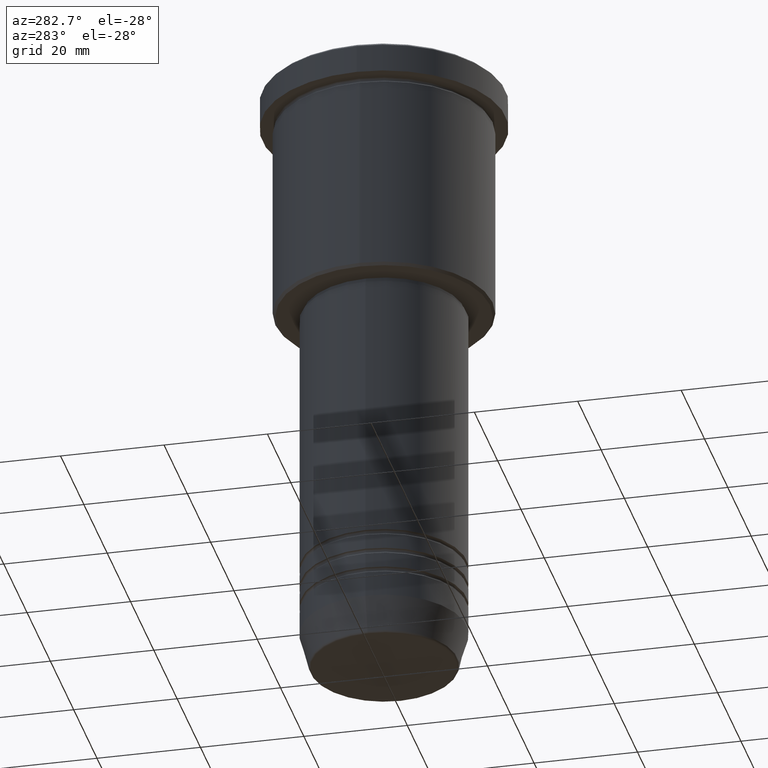
[diagram: clean part render]
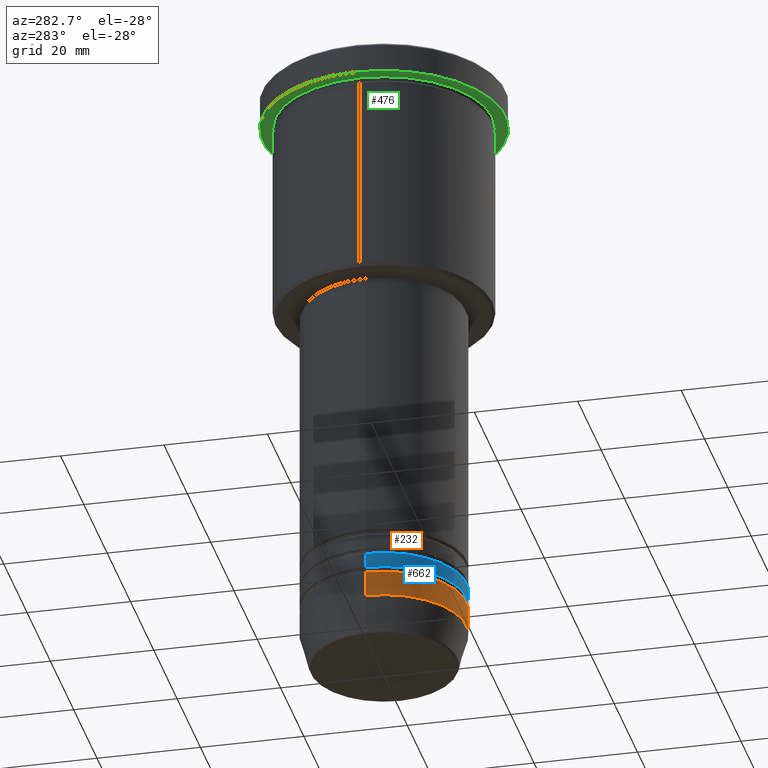
[diagram: same view with three faces highlighted in distinct colors, each labeled with its STEP entity id]
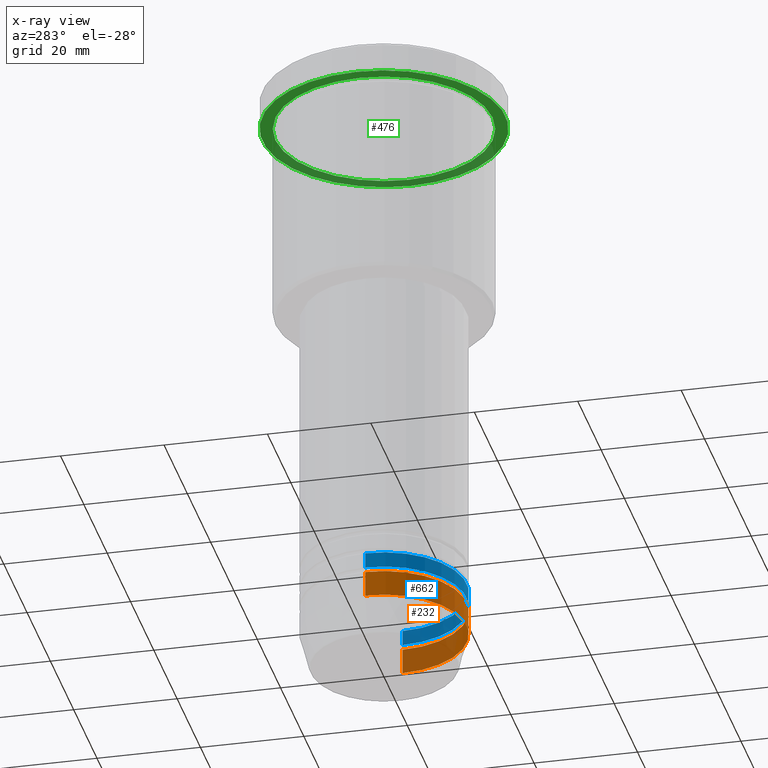
[diagram: x-ray of the same camera — body ghosted, the three highlighted faces saturated]
A machine part, auxiliary view with three faces highlighted in distinct colors.
The next image is the same camera in x-ray (body ghosted, the three faces saturated) — at least one of them is partly hidden behind the body in this view.
Their STEP definitions:

[orange] entity #232 — the highlighted cylindrical surface (partial cylindrical patch) has radius 16 mm, axis along (-0, -0, 1).
#12 = CARTESIAN_POINT ( 'NONE',  ( -16.00000000000000000, 1.959434878635765131E-15, 0.000000000000000000 ) ) ;
#14 = AXIS2_PLACEMENT_3D ( 'NONE', #48, #431, #1140 ) ;
#48 = CARTESIAN_POINT ( 'NONE',  ( 0.000000000000000000, 0.000000000000000000, 0.000000000000000000 ) ) ;
#84 = DIRECTION ( 'NONE',  ( 1.000000000000000000, 0.000000000000000000, 0.000000000000000000 ) ) ;
#114 = EDGE_CURVE ( 'NONE', #150, #1135, #825, .T. ) ;
#131 = AXIS2_PLACEMENT_3D ( 'NONE', #722, #1080, #84 ) ;
#145 = FACE_OUTER_BOUND ( 'NONE', #974, .T. ) ;
#150 = VERTEX_POINT ( 'NONE', #881 ) ;
#232 = ADVANCED_FACE ( 'NONE', ( #145 ), #872, .T. ) ;
#233 = VECTOR ( 'NONE', #411, 1000.000000000000000 ) ;
#329 = DIRECTION ( 'NONE',  ( 1.000000000000000000, 0.000000000000000000, 0.000000000000000000 ) ) ;
#385 = EDGE_CURVE ( 'NONE', #814, #609, #454, .T. ) ;
#395 = EDGE_CURVE ( 'NONE', #814, #150, #833, .T. ) ;
#411 = DIRECTION ( 'NONE',  ( -0.000000000000000000, -0.000000000000000000, 1.000000000000000000 ) ) ;
#413 = VECTOR ( 'NONE', #568, 1000.000000000000000 ) ;
#431 = DIRECTION ( 'NONE',  ( -0.000000000000000000, -0.000000000000000000, 1.000000000000000000 ) ) ;
#446 = CARTESIAN_POINT ( 'NONE',  ( 16.00000000000000000, 0.000000000000000000, -109.0000000000000142 ) ) ;
#454 = CIRCLE ( 'NONE', #131, 16.00000000000000000 ) ;
#568 = DIRECTION ( 'NONE',  ( -0.000000000000000000, -0.000000000000000000, 1.000000000000000000 ) ) ;
#609 = VERTEX_POINT ( 'NONE', #1123 ) ;
#613 = DIRECTION ( 'NONE',  ( -0.000000000000000000, -0.000000000000000000, 1.000000000000000000 ) ) ;
#615 = CARTESIAN_POINT ( 'NONE',  ( 16.00000000000000000, 0.000000000000000000, 0.000000000000000000 ) ) ;
#681 = ORIENTED_EDGE ( 'NONE', *, *, #1049, .T. ) ;
#722 = CARTESIAN_POINT ( 'NONE',  ( 0.000000000000000000, 0.000000000000000000, -114.0000000000000000 ) ) ;
#770 = CARTESIAN_POINT ( 'NONE',  ( 0.000000000000000000, 0.000000000000000000, -109.0000000000000142 ) ) ;
#805 = ORIENTED_EDGE ( 'NONE', *, *, #385, .T. ) ;
#814 = VERTEX_POINT ( 'NONE', #1106 ) ;
#823 = AXIS2_PLACEMENT_3D ( 'NONE', #770, #613, #329 ) ;
#825 = CIRCLE ( 'NONE', #823, 16.00000000000000000 ) ;
#833 = LINE ( 'NONE', #12, #413 ) ;
#872 = CYLINDRICAL_SURFACE ( 'NONE', #14, 16.00000000000000000 ) ;
#881 = CARTESIAN_POINT ( 'NONE',  ( -16.00000000000000000, 1.959434878635765131E-15, -109.0000000000000142 ) ) ;
#927 = ORIENTED_EDGE ( 'NONE', *, *, #395, .F. ) ;
#974 = EDGE_LOOP ( 'NONE', ( #927, #805, #681, #1006 ) ) ;
#1006 = ORIENTED_EDGE ( 'NONE', *, *, #114, .F. ) ;
#1049 = EDGE_CURVE ( 'NONE', #609, #1135, #1059, .T. ) ;
#1059 = LINE ( 'NONE', #615, #233 ) ;
#1080 = DIRECTION ( 'NONE',  ( -0.000000000000000000, -0.000000000000000000, 1.000000000000000000 ) ) ;
#1106 = CARTESIAN_POINT ( 'NONE',  ( -16.00000000000000000, 1.959434878635765131E-15, -114.0000000000000000 ) ) ;
#1123 = CARTESIAN_POINT ( 'NONE',  ( 16.00000000000000000, 0.000000000000000000, -114.0000000000000000 ) ) ;
#1135 = VERTEX_POINT ( 'NONE', #446 ) ;
#1140 = DIRECTION ( 'NONE',  ( 1.000000000000000000, 0.000000000000000000, 0.000000000000000000 ) ) ;

[blue] entity #662 — the highlighted cylindrical surface (partial cylindrical patch) has radius 16 mm, axis along (-0, -0, 1).
#16 = AXIS2_PLACEMENT_3D ( 'NONE', #404, #298, #842 ) ;
#37 = FACE_OUTER_BOUND ( 'NONE', #603, .T. ) ;
#74 = VECTOR ( 'NONE', #533, 1000.000000000000000 ) ;
#75 = CIRCLE ( 'NONE', #451, 16.00000000000000000 ) ;
#135 = LINE ( 'NONE', #616, #74 ) ;
#251 = CARTESIAN_POINT ( 'NONE',  ( -16.00000000000000000, 1.959434878635765131E-15, -107.9999999999998863 ) ) ;
#298 = DIRECTION ( 'NONE',  ( -0.000000000000000000, -0.000000000000000000, 1.000000000000000000 ) ) ;
#322 = VERTEX_POINT ( 'NONE', #818 ) ;
#331 = DIRECTION ( 'NONE',  ( 1.000000000000000000, 0.000000000000000000, 0.000000000000000000 ) ) ;
#404 = CARTESIAN_POINT ( 'NONE',  ( 0.000000000000000000, 0.000000000000000000, -107.9999999999998863 ) ) ;
#423 = DIRECTION ( 'NONE',  ( -0.000000000000000000, -0.000000000000000000, 1.000000000000000000 ) ) ;
#442 = CARTESIAN_POINT ( 'NONE',  ( 0.000000000000000000, 0.000000000000000000, 0.000000000000000000 ) ) ;
#451 = AXIS2_PLACEMENT_3D ( 'NONE', #1108, #756, #571 ) ;
#533 = DIRECTION ( 'NONE',  ( -0.000000000000000000, -0.000000000000000000, 1.000000000000000000 ) ) ;
#571 = DIRECTION ( 'NONE',  ( 1.000000000000000000, 0.000000000000000000, 0.000000000000000000 ) ) ;
#585 = EDGE_CURVE ( 'NONE', #322, #874, #1036, .T. ) ;
#589 = EDGE_CURVE ( 'NONE', #994, #843, #135, .T. ) ;
#603 = EDGE_LOOP ( 'NONE', ( #1101, #685, #998, #871 ) ) ;
#616 = CARTESIAN_POINT ( 'NONE',  ( -16.00000000000000000, 1.959434878635765131E-15, 0.000000000000000000 ) ) ;
#653 = CIRCLE ( 'NONE', #16, 16.00000000000000000 ) ;
#662 = ADVANCED_FACE ( 'NONE', ( #37 ), #972, .T. ) ;
#684 = DIRECTION ( 'NONE',  ( -0.000000000000000000, -0.000000000000000000, 1.000000000000000000 ) ) ;
#685 = ORIENTED_EDGE ( 'NONE', *, *, #815, .T. ) ;
#747 = CARTESIAN_POINT ( 'NONE',  ( 16.00000000000000000, 0.000000000000000000, -104.9999999999999005 ) ) ;
#756 = DIRECTION ( 'NONE',  ( -0.000000000000000000, -0.000000000000000000, 1.000000000000000000 ) ) ;
#815 = EDGE_CURVE ( 'NONE', #994, #322, #653, .T. ) ;
#818 = CARTESIAN_POINT ( 'NONE',  ( 16.00000000000000000, 0.000000000000000000, -107.9999999999998863 ) ) ;
#842 = DIRECTION ( 'NONE',  ( 1.000000000000000000, 0.000000000000000000, 0.000000000000000000 ) ) ;
#843 = VERTEX_POINT ( 'NONE', #938 ) ;
#871 = ORIENTED_EDGE ( 'NONE', *, *, #873, .F. ) ;
#873 = EDGE_CURVE ( 'NONE', #843, #874, #75, .T. ) ;
#874 = VERTEX_POINT ( 'NONE', #747 ) ;
#938 = CARTESIAN_POINT ( 'NONE',  ( -16.00000000000000000, 1.959434878635765131E-15, -104.9999999999999005 ) ) ;
#972 = CYLINDRICAL_SURFACE ( 'NONE', #1162, 16.00000000000000000 ) ;
#994 = VERTEX_POINT ( 'NONE', #251 ) ;
#998 = ORIENTED_EDGE ( 'NONE', *, *, #585, .T. ) ;
#1030 = VECTOR ( 'NONE', #684, 1000.000000000000000 ) ;
#1036 = LINE ( 'NONE', #1060, #1030 ) ;
#1060 = CARTESIAN_POINT ( 'NONE',  ( 16.00000000000000000, 0.000000000000000000, 0.000000000000000000 ) ) ;
#1101 = ORIENTED_EDGE ( 'NONE', *, *, #589, .F. ) ;
#1108 = CARTESIAN_POINT ( 'NONE',  ( 0.000000000000000000, 0.000000000000000000, -104.9999999999999005 ) ) ;
#1162 = AXIS2_PLACEMENT_3D ( 'NONE', #442, #423, #331 ) ;

[green] entity #476 — the highlighted planar face has unit normal (0, 0, -1).
#10 = EDGE_CURVE ( 'NONE', #828, #959, #579, .T. ) ;
#15 = DIRECTION ( 'NONE',  ( -0.000000000000000000, -0.000000000000000000, 1.000000000000000000 ) ) ;
#42 = EDGE_CURVE ( 'NONE', #1056, #1180, #109, .T. ) ;
#50 = AXIS2_PLACEMENT_3D ( 'NONE', #588, #416, #227 ) ;
#87 = EDGE_LOOP ( 'NONE', ( #811, #1130 ) ) ;
#90 = AXIS2_PLACEMENT_3D ( 'NONE', #741, #15, #750 ) ;
#109 = CIRCLE ( 'NONE', #50, 21.00000000000000000 ) ;
#121 = CARTESIAN_POINT ( 'NONE',  ( 0.000000000000000000, 23.50000000000000000, -5.999999999999993783 ) ) ;
#130 = AXIS2_PLACEMENT_3D ( 'NONE', #1077, #164, #742 ) ;
#164 = DIRECTION ( 'NONE',  ( -0.000000000000000000, -0.000000000000000000, 1.000000000000000000 ) ) ;
#224 = CARTESIAN_POINT ( 'NONE',  ( 23.50000000000000000, 0.000000000000000000, -5.999999999999993783 ) ) ;
#227 = DIRECTION ( 'NONE',  ( -1.000000000000000000, 0.000000000000000000, 0.000000000000000000 ) ) ;
#249 = ORIENTED_EDGE ( 'NONE', *, *, #1178, .F. ) ;
#316 = DIRECTION ( 'NONE',  ( 0.000000000000000000, 0.000000000000000000, -1.000000000000000000 ) ) ;
#348 = CARTESIAN_POINT ( 'NONE',  ( 21.00000000000000000, 2.571758278209441661E-15, -5.999999999999992895 ) ) ;
#373 = CARTESIAN_POINT ( 'NONE',  ( 0.000000000000000000, 0.000000000000000000, -5.999999999999993783 ) ) ;
#399 = AXIS2_PLACEMENT_3D ( 'NONE', #121, #316, #499 ) ;
#416 = DIRECTION ( 'NONE',  ( -0.000000000000000000, -0.000000000000000000, 1.000000000000000000 ) ) ;
#472 = EDGE_LOOP ( 'NONE', ( #249, #1119 ) ) ;
#474 = AXIS2_PLACEMENT_3D ( 'NONE', #373, #916, #1082 ) ;
#476 = ADVANCED_FACE ( 'NONE', ( #925, #573 ), #671, .T. ) ;
#499 = DIRECTION ( 'NONE',  ( -1.000000000000000000, 0.000000000000000000, -0.000000000000000000 ) ) ;
#573 = FACE_OUTER_BOUND ( 'NONE', #472, .T. ) ;
#579 = CIRCLE ( 'NONE', #90, 23.50000000000000000 ) ;
#588 = CARTESIAN_POINT ( 'NONE',  ( 0.000000000000000000, 0.000000000000000000, -5.999999999999993783 ) ) ;
#671 = PLANE ( 'NONE',  #399 ) ;
#718 = EDGE_CURVE ( 'NONE', #1180, #1056, #841, .T. ) ;
#739 = CARTESIAN_POINT ( 'NONE',  ( -23.50000000000000000, 2.877919977996280320E-15, -5.999999999999993783 ) ) ;
#741 = CARTESIAN_POINT ( 'NONE',  ( 0.000000000000000000, 0.000000000000000000, -5.999999999999993783 ) ) ;
#742 = DIRECTION ( 'NONE',  ( 1.000000000000000000, 0.000000000000000000, 0.000000000000000000 ) ) ;
#750 = DIRECTION ( 'NONE',  ( 1.000000000000000000, 0.000000000000000000, 0.000000000000000000 ) ) ;
#811 = ORIENTED_EDGE ( 'NONE', *, *, #42, .T. ) ;
#828 = VERTEX_POINT ( 'NONE', #739 ) ;
#838 = CIRCLE ( 'NONE', #130, 23.50000000000000000 ) ;
#841 = CIRCLE ( 'NONE', #474, 21.00000000000000000 ) ;
#916 = DIRECTION ( 'NONE',  ( -0.000000000000000000, -0.000000000000000000, 1.000000000000000000 ) ) ;
#925 = FACE_BOUND ( 'NONE', #87, .T. ) ;
#959 = VERTEX_POINT ( 'NONE', #224 ) ;
#1045 = CARTESIAN_POINT ( 'NONE',  ( -21.00000000000000000, 0.000000000000000000, -5.999999999999992895 ) ) ;
#1056 = VERTEX_POINT ( 'NONE', #1045 ) ;
#1077 = CARTESIAN_POINT ( 'NONE',  ( 0.000000000000000000, 0.000000000000000000, -5.999999999999993783 ) ) ;
#1082 = DIRECTION ( 'NONE',  ( -1.000000000000000000, 0.000000000000000000, 0.000000000000000000 ) ) ;
#1119 = ORIENTED_EDGE ( 'NONE', *, *, #10, .F. ) ;
#1130 = ORIENTED_EDGE ( 'NONE', *, *, #718, .T. ) ;
#1178 = EDGE_CURVE ( 'NONE', #959, #828, #838, .T. ) ;
#1180 = VERTEX_POINT ( 'NONE', #348 ) ;